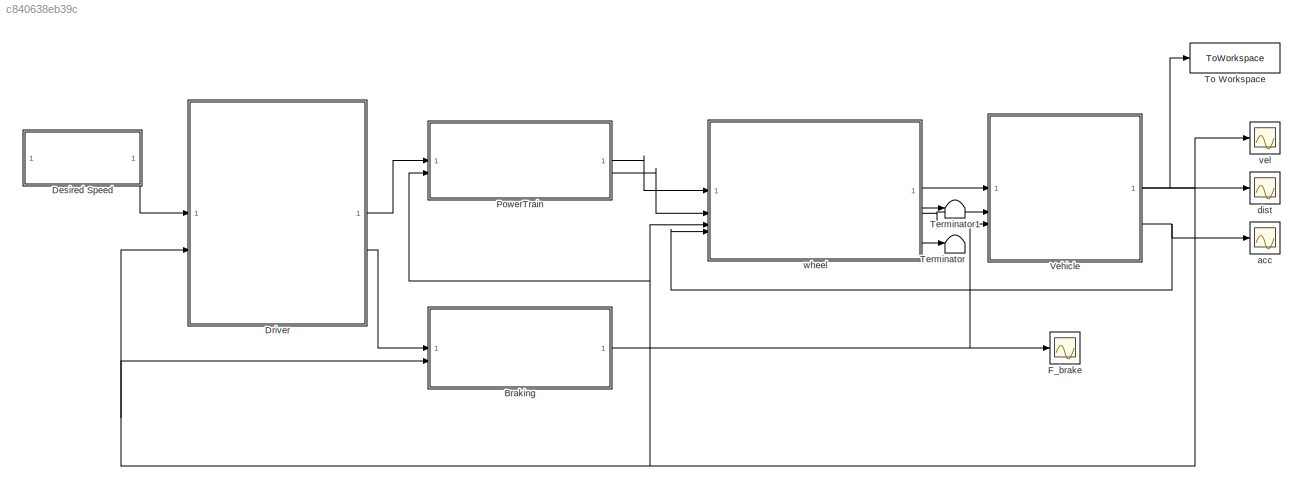
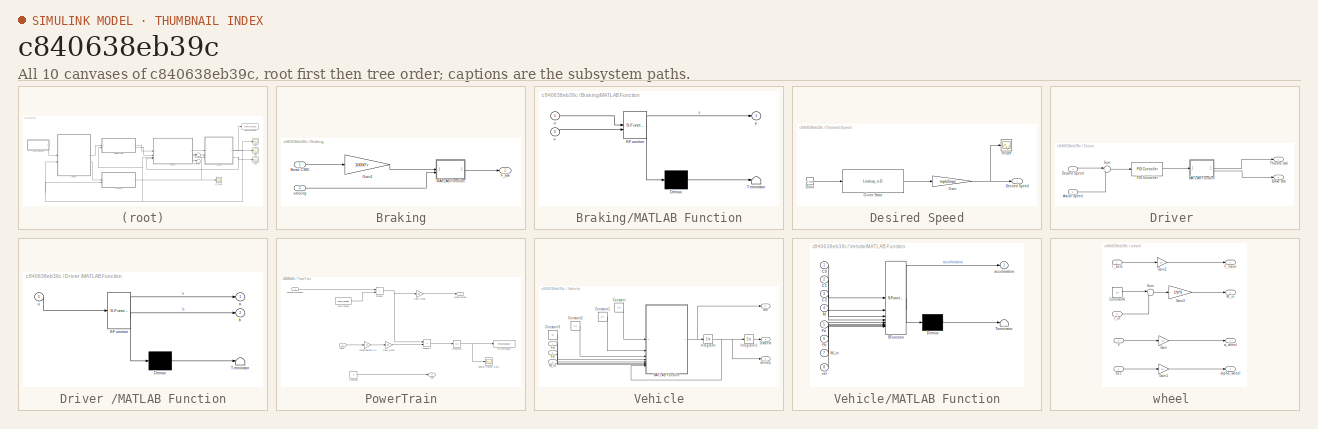
[diagram: thumbnail index - all 10 canvases of the model, root first then tree order]
MODEL slx_c840638eb39c
KIND model
CONFIG AbsTol = auto
CONFIG EnableMultiTasking = off
CONFIG FixedStep = auto
CONFIG MaxStep = auto
CONFIG MinStep = auto
CONFIG RelTol = 1e-3
CONFIG SampleTimeConstraint = Unconstrained
CONFIG SolverName = VariableStepAuto
CONFIG StartTime = 0.0
CONFIG StopTime = 1369
BLOCK [SubSystem] Braking
BLOCK [Inport] Braking/Break CMD
BLOCK [Outport] Braking/F_brk 
  VectorParamsAs1DForOutWhenUnconnected = off
BLOCK [Gain] Braking/Gain1
  Gain = 10000*r
BLOCK [SubSystem] Braking/MATLAB Function
  ErrorFcn = Stateflow.Translate.translate
  PermitHierarchicalResolution = ExplicitOnly
  SFBlockType = MATLAB Function
  TreatAsAtomicUnit = on
BLOCK [Demux] Braking/MATLAB Function/ Demux 
  Outputs = 1
BLOCK [S-Function] Braking/MATLAB Function/ SFunction 
  EnableBusSupport = on
  FunctionName = sf_sfun
  PortCounts = [2 2]
  SFcnIsStateOwnerBlock = off
  SFunctionDeploymentMode = off
  Tag = Stateflow S-Function 7
BLOCK [Terminator] Braking/MATLAB Function/ Terminator 
BLOCK [Inport] Braking/MATLAB Function/u
BLOCK [Inport] Braking/MATLAB Function/v
  Port = 2
BLOCK [Outport] Braking/MATLAB Function/y
BLOCK [Inport] Braking/velocity 
  Port = 2
BLOCK [SubSystem] Desired Speed
BLOCK [Clock] Desired Speed/Clock
BLOCK [Outport] Desired Speed/Desired Speed
  VectorParamsAs1DForOutWhenUnconnected = off
BLOCK [Gain] Desired Speed/Gain
  Gain = mph2mps
BLOCK [Lookup_n-D] Desired Speed/Given Stats
  BreakpointsForDimension1 = Time
  InputPortMap = u0
  InternalRulePriority = Speed
  NumberOfTableDimensions = 1
  RndMeth = Simplest
  Table = DriveData
BLOCK [Scope] Desired Speed/Scope
  Floating = off
  NumInputPorts = 1
  ScopeSpecificationString = Simulink.scopes.TimeScopeBlockCfg('CurrentConfiguration', extmgr.ConfigurationSet(extmgr.Configuration('Core','General UI',true),extmgr.Configuration('Core','Source UI',true),extmgr.Configuration('Sources','WiredSimulink',true,'DataLoggingVariableName','ScopeData4'),extmgr.Configuration('Visuals','Time Domain',true,'SerializedDisplays',{struct('MinYLimReal','-3.16303','MaxYLimReal','28.46725','YLa...<+1456ch>
BLOCK [SubSystem] Driver 
BLOCK [Inport] Driver /Actual Speed
  Port = 2
BLOCK [Outport] Driver /Brake cmd
  Port = 2
BLOCK [Inport] Driver /Desired Speed
BLOCK [SubSystem] Driver /MATLAB Function
  ErrorFcn = Stateflow.Translate.translate
  PermitHierarchicalResolution = ExplicitOnly
  SFBlockType = MATLAB Function
  TreatAsAtomicUnit = on
BLOCK [Demux] Driver /MATLAB Function/ Demux 
  Outputs = 1
BLOCK [S-Function] Driver /MATLAB Function/ SFunction 
  EnableBusSupport = on
  FunctionName = sf_sfun
  PortCounts = [1 3]
  SFcnIsStateOwnerBlock = off
  SFunctionDeploymentMode = off
  Tag = Stateflow S-Function 1
BLOCK [Terminator] Driver /MATLAB Function/ Terminator 
BLOCK [Outport] Driver /MATLAB Function/a
BLOCK [Outport] Driver /MATLAB Function/b
  Port = 2
BLOCK [Inport] Driver /MATLAB Function/u
BLOCK [Reference] Driver /PID Controller  REF=slpidlib/PID Controller
  SourceBlock = slpidlib/PID Controller
  SourceType = PID 1dof
BLOCK [Sum] Driver /Sum
  Inputs = |+-
BLOCK [Outport] Driver /Throttle cmd
BLOCK [Scope] F_brake
  Floating = off
  NumInputPorts = 1
  ScopeSpecificationString = Simulink.scopes.TimeScopeBlockCfg('CurrentConfiguration', extmgr.ConfigurationSet(extmgr.Configuration('Core','General UI',true),extmgr.Configuration('Core','Source UI',true),extmgr.Configuration('Sources','WiredSimulink',true,'DataLoggingVariableName','ScopeData1'),extmgr.Configuration('Visuals','Time Domain',true,'SerializedDisplays',{struct('MinYLimReal','-317.5','MaxYLimReal','2857.5','YLabelR...<+1449ch>
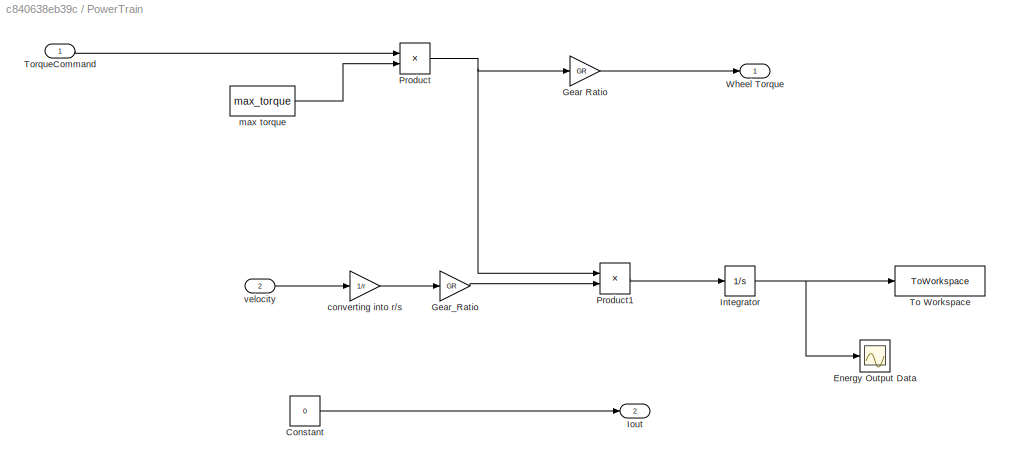
BLOCK [SubSystem] PowerTrain
BLOCK [Constant] PowerTrain/Constant
  Value = 0
BLOCK [Scope] PowerTrain/Energy Output Data
  Floating = off
  NumInputPorts = 1
  ScopeSpecificationString = Simulink.scopes.TimeScopeBlockCfg('CurrentConfiguration', extmgr.ConfigurationSet(extmgr.Configuration('Core','General UI',true),extmgr.Configuration('Core','Source UI',true),extmgr.Configuration('Sources','WiredSimulink',true,'DataLoggingVariableName','ScopeData1'),extmgr.Configuration('Visuals','Time Domain',true,'SerializedDisplays',{struct('MinYLimReal','-67021.21328','MaxYLimReal','603190.919...<+1525ch>
BLOCK [Gain] PowerTrain/Gear Ratio
  Gain = GR
BLOCK [Gain] PowerTrain/Gear_Ratio
  Gain = GR
BLOCK [Integrator] PowerTrain/Integrator
BLOCK [Outport] PowerTrain/Iout
  Port = 2
BLOCK [Product] PowerTrain/Product
BLOCK [Product] PowerTrain/Product1
BLOCK [ToWorkspace] PowerTrain/To Workspace
  MaxDataPoints = inf
  SampleTime = -1
  Save2DSignal = 2-D array (concatenate along first dimension)
  VariableName = energy_data
BLOCK [Inport] PowerTrain/TorqueCommand
BLOCK [Outport] PowerTrain/Wheel Torque
BLOCK [Gain] PowerTrain/converting into r//s
  Gain = 1/r
BLOCK [Constant] PowerTrain/max torque
  Value = max_torque
BLOCK [Inport] PowerTrain/velocity 
  Port = 2
BLOCK [Terminator] Terminator
BLOCK [Terminator] Terminator1
BLOCK [ToWorkspace] To Workspace
  FixptAsFi = on
  MaxDataPoints = inf
  SampleTime = -1
  SaveFormat = Timeseries
  VariableName = vel
BLOCK [SubSystem] Vehicle
BLOCK [Constant] Vehicle/Constant
  Value = C0
BLOCK [Constant] Vehicle/Constant1
  Value = C1
BLOCK [Constant] Vehicle/Constant2
  Value = C2
BLOCK [Constant] Vehicle/Constant3
  Value = M
BLOCK [Outport] Vehicle/Distance 
  Port = 2
  VectorParamsAs1DForOutWhenUnconnected = off
BLOCK [Inport] Vehicle/Fb 
  Port = 3
BLOCK [Inport] Vehicle/Fw 
BLOCK [Integrator] Vehicle/Integrator
  LimitOutput = on
  LowerSaturationLimit = 0
BLOCK [Integrator] Vehicle/Integrator1
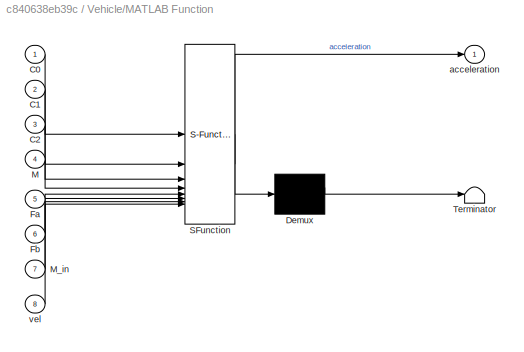
BLOCK [SubSystem] Vehicle/MATLAB Function
  ErrorFcn = Stateflow.Translate.translate
  PermitHierarchicalResolution = ExplicitOnly
  SFBlockType = MATLAB Function
  TreatAsAtomicUnit = on
BLOCK [Demux] Vehicle/MATLAB Function/ Demux 
  Outputs = 1
BLOCK [S-Function] Vehicle/MATLAB Function/ SFunction 
  EnableBusSupport = on
  FunctionName = sf_sfun
  PortCounts = [8 2]
  SFcnIsStateOwnerBlock = off
  SFunctionDeploymentMode = off
  Tag = Stateflow S-Function 2
BLOCK [Terminator] Vehicle/MATLAB Function/ Terminator 
BLOCK [Inport] Vehicle/MATLAB Function/C0
BLOCK [Inport] Vehicle/MATLAB Function/C1
  Port = 2
BLOCK [Inport] Vehicle/MATLAB Function/C2
  Port = 3
BLOCK [Inport] Vehicle/MATLAB Function/Fa
  Port = 5
BLOCK [Inport] Vehicle/MATLAB Function/Fb
  Port = 6
BLOCK [Inport] Vehicle/MATLAB Function/M
  Port = 4
BLOCK [Inport] Vehicle/MATLAB Function/M_in
  Port = 7
BLOCK [Outport] Vehicle/MATLAB Function/acceleration
  VectorParamsAs1DForOutWhenUnconnected = off
BLOCK [Inport] Vehicle/MATLAB Function/vel
  Port = 8
BLOCK [Inport] Vehicle/M_in 
  Port = 2
BLOCK [Outport] Vehicle/acc
  Port = 3
BLOCK [Outport] Vehicle/velocity 
  VectorParamsAs1DForOutWhenUnconnected = off
BLOCK [Scope] acc
  Floating = off
  NumInputPorts = 1
  ScopeSpecificationString = Simulink.scopes.TimeScopeBlockCfg('CurrentConfiguration', extmgr.ConfigurationSet(extmgr.Configuration('Core','General UI',true),extmgr.Configuration('Core','Source UI',true),extmgr.Configuration('Sources','WiredSimulink',true,'DataLoggingVariableName','ScopeData2'),extmgr.Configuration('Visuals','Time Domain',true,'SerializedDisplays',{struct('MinYLimReal','-12.30056','MaxYLimReal','74.14815','YL...<+1385ch>
BLOCK [Scope] dist
  Floating = off
  NumInputPorts = 1
  ScopeSpecificationString = Simulink.scopes.TimeScopeBlockCfg('CurrentConfiguration', extmgr.ConfigurationSet(extmgr.Configuration('Core','General UI',true),extmgr.Configuration('Core','Source UI',true),extmgr.Configuration('Sources','WiredSimulink',true,'DataLoggingVariableName','ScopeData3'),extmgr.Configuration('Visuals','Time Domain',true,'SerializedDisplays',{struct('MinYLimReal','-385.08236','MaxYLimReal','3465.74126',...<+1386ch>
BLOCK [Scope] vel
  Floating = off
  NumInputPorts = 1
  ScopeSpecificationString = Simulink.scopes.TimeScopeBlockCfg('CurrentConfiguration', extmgr.ConfigurationSet(extmgr.Configuration('Core','General UI',true),extmgr.Configuration('Core','Source UI',true),extmgr.Configuration('Sources','WiredSimulink',true,'DataLoggingVariableName','ScopeData4'),extmgr.Configuration('Visuals','Time Domain',true,'SerializedDisplays',{struct('MinYLimReal','-3.04417','MaxYLimReal','27.39754','YLa...<+1407ch>
BLOCK [SubSystem] wheel 
BLOCK [Constant] wheel /Constant6
  Value = Iw
BLOCK [Outport] wheel /F_track
BLOCK [Gain] wheel /Gain
  Gain = 1/r
BLOCK [Gain] wheel /Gain1
  Gain = 1/r
BLOCK [Gain] wheel /Gain2
  Gain = 1/r
BLOCK [Gain] wheel /Gain3
  Gain = 1/(r*r)
BLOCK [Inport] wheel /I_in
  Port = 2
BLOCK [Outport] wheel /M_in
  Port = 2
BLOCK [Sum] wheel /Sum
  Inputs = |++
BLOCK [Inport] wheel /T_axle
BLOCK [Inport] wheel /V
  Port = 3
BLOCK [Inport] wheel /acc
  Port = 4
BLOCK [Outport] wheel /alpha_wheel
  Port = 4
BLOCK [Outport] wheel /w_wheel
  Port = 3
LINE Braking/Break CMD:1 -> Braking/Gain1:1
LINE Braking/Gain1:1 -> Braking/MATLAB Function:1
LINE Braking/MATLAB Function:1 -> Braking/F_brk :1
LINE Braking/velocity :1 -> Braking/MATLAB Function:2
NET Braking:1 -> F_brake:1, Vehicle:3
LINE Desired Speed/Clock:1 -> Desired Speed/Given Stats:1
NET Desired Speed/Gain:1 -> Desired Speed/Desired Speed:1, Desired Speed/Scope:1
LINE Desired Speed/Given Stats:1 -> Desired Speed/Gain:1
LINE Desired Speed:1 -> Driver :1
LINE Driver /Actual Speed:1 -> Driver /Sum:2
LINE Driver /Desired Speed:1 -> Driver /Sum:1
LINE Driver /MATLAB Function:1 -> Driver /Throttle cmd:1
LINE Driver /MATLAB Function:2 -> Driver /Brake cmd:1
LINE Driver /PID Controller:1 -> Driver /MATLAB Function:1
LINE Driver /Sum:1 -> Driver /PID Controller:1
LINE Driver :1 -> PowerTrain:1
LINE Driver :2 -> Braking:1
LINE PowerTrain/Constant:1 -> PowerTrain/Iout:1
LINE PowerTrain/Gear Ratio:1 -> PowerTrain/Wheel Torque:1
LINE PowerTrain/Gear_Ratio:1 -> PowerTrain/Product1:2
NET PowerTrain/Integrator:1 -> PowerTrain/Energy Output Data:1, PowerTrain/To Workspace:1
LINE PowerTrain/Product1:1 -> PowerTrain/Integrator:1
NET PowerTrain/Product:1 -> PowerTrain/Gear Ratio:1, PowerTrain/Product1:1
LINE PowerTrain/TorqueCommand:1 -> PowerTrain/Product:1
LINE PowerTrain/converting into r//s:1 -> PowerTrain/Gear_Ratio:1
LINE PowerTrain/max torque:1 -> PowerTrain/Product:2
LINE PowerTrain/velocity :1 -> PowerTrain/converting into r//s:1
LINE PowerTrain:1 -> wheel :1
LINE PowerTrain:2 -> wheel :2
LINE Vehicle/Constant1:1 -> Vehicle/MATLAB Function:2
LINE Vehicle/Constant2:1 -> Vehicle/MATLAB Function:3
LINE Vehicle/Constant3:1 -> Vehicle/MATLAB Function:4
LINE Vehicle/Constant:1 -> Vehicle/MATLAB Function:1
LINE Vehicle/Fb :1 -> Vehicle/MATLAB Function:6
LINE Vehicle/Fw :1 -> Vehicle/MATLAB Function:5
LINE Vehicle/Integrator1:1 -> Vehicle/Distance :1
NET Vehicle/Integrator:1 -> Vehicle/Integrator1:1, Vehicle/MATLAB Function:8, Vehicle/velocity :1
NET Vehicle/MATLAB Function:1 -> Vehicle/Integrator:1, Vehicle/acc:1
LINE Vehicle/M_in :1 -> Vehicle/MATLAB Function:7
NET Vehicle:1 -> Braking:2, Driver :2, PowerTrain:2, To Workspace:1, vel:1, wheel :3
LINE Vehicle:2 -> dist:1
NET Vehicle:3 -> acc:1, wheel :4
LINE wheel /Constant6:1 -> wheel /Sum:1
LINE wheel /Gain1:1 -> wheel /alpha_wheel:1
LINE wheel /Gain2:1 -> wheel /F_track:1
LINE wheel /Gain3:1 -> wheel /M_in:1
LINE wheel /Gain:1 -> wheel /w_wheel:1
LINE wheel /I_in:1 -> wheel /Sum:2
LINE wheel /Sum:1 -> wheel /Gain3:1
LINE wheel /T_axle:1 -> wheel /Gain2:1
LINE wheel /V:1 -> wheel /Gain:1
LINE wheel /acc:1 -> wheel /Gain1:1
LINE wheel :1 -> Vehicle:1
LINE wheel :2 -> Vehicle:2
LINE wheel :3 -> Terminator1:1
LINE wheel :4 -> Terminator:1
note: NET lines group one-source signal fan-out (src -> all destinations, sorted); 1:1 wires keep LINE
CHART Driver
/MATLAB Function states=1 transitions=1
  STATE_LABEL 'eML_blk_kernel()'
  STATE_LABEL 'SCRIPT:\nfunction [a,b] = fcn(u)\n\nif u>0\n    acc=u;\n    brk=0;\nelseif u<0\n    acc=0;\n    brk=-u;\nelse\n    acc=0;\n    brk=0;\nend\na= acc;\nb= brk;\n\n\n'
CHART Vehicle/MATLAB Function states=1 transitions=1
  STATE_LABEL 'eML_blk_kernel()'
  STATE_LABEL 'SCRIPT:\nfunction acceleration   = vehicle(C0,C1,C2,M,Fa,Fb,M_in, vel)\n\nacceleration = (((Fa-Fb))-(C0+ C1*vel + C2*(vel)^2))/(M+M_in);\n'
CHART Braking/MATLAB Function states=1 transitions=1
  STATE_LABEL 'eML_blk_kernel()'
  STATE_LABEL 'SCRIPT:\nfunction y = fcn(u,v)\ny = u;\n'
CHART  states=0 transitions=0
CHART  states=0 transitions=0
CHART  states=0 transitions=0
